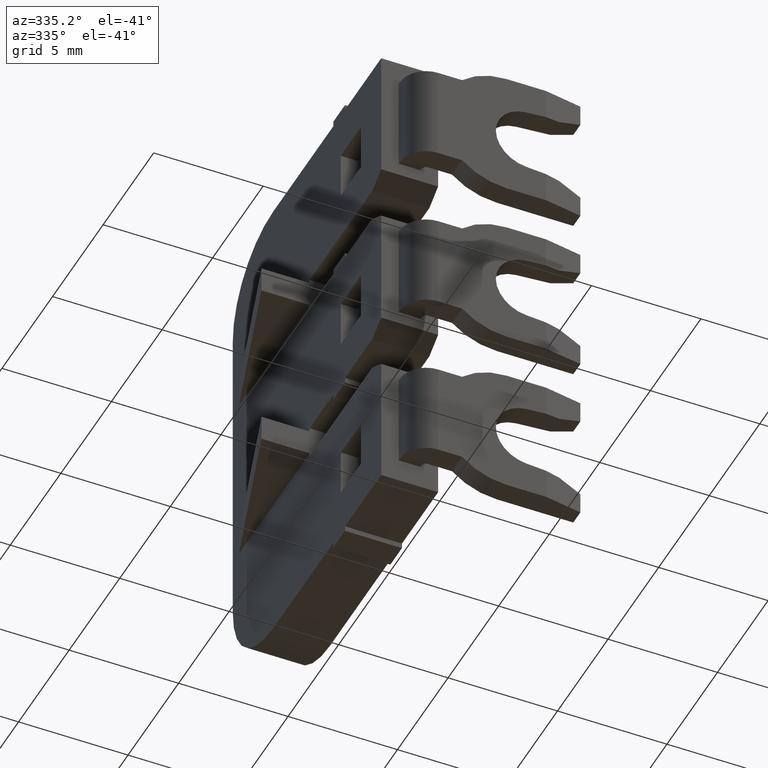
[diagram: clean part render]
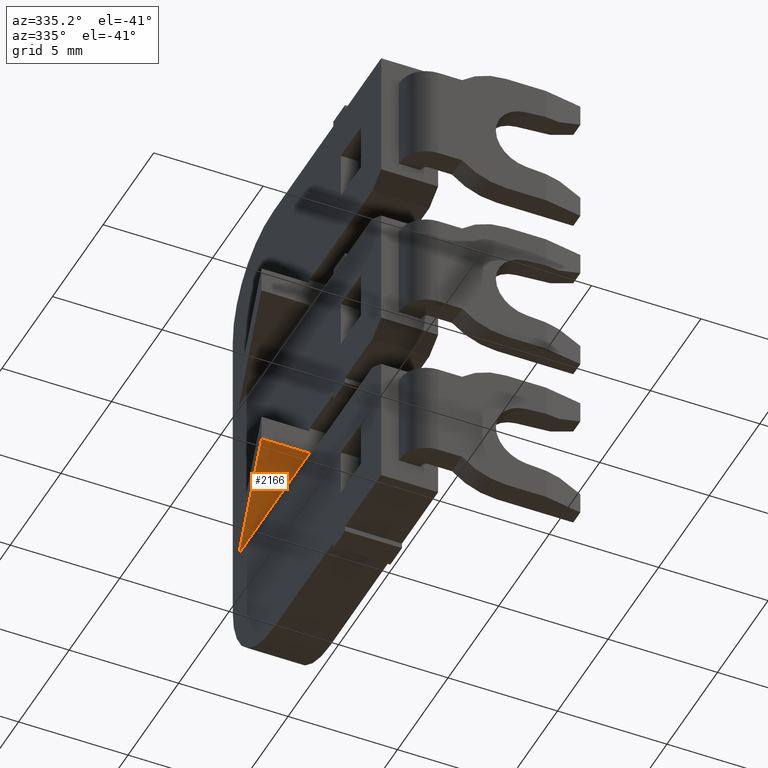
[diagram: same view with one face highlighted and labeled with its STEP entity id]
A machine part, auxiliary view. The second image highlights one B-rep face of the part: STEP entity #2166.
In plain terms, the highlighted planar face has unit normal (0, 0, 1).
Its self-contained STEP definition (entity closure, byte-faithful):
#246 = LINE ( 'NONE', #250, #1277 ) ;
#250 = CARTESIAN_POINT ( 'NONE',  ( 1490.045209356660100, 1087.334526901996000, -8.774999998093223400 ) ) ;
#271 = DIRECTION ( 'NONE',  ( -1.000000000000000000, -3.663735981263015800E-015, 3.003463711734375600E-015 ) ) ;
#285 = ORIENTED_EDGE ( 'NONE', *, *, #1981, .T. ) ;
#299 = ORIENTED_EDGE ( 'NONE', *, *, #1974, .T. ) ;
#328 = ORIENTED_EDGE ( 'NONE', *, *, #1970, .T. ) ;
#1277 = VECTOR ( 'NONE', #271, 1000.000000000000000 ) ;
#1280 = VECTOR ( 'NONE', #3640, 1000.000000000000000 ) ;
#1297 = VECTOR ( 'NONE', #3637, 1000.000000000000100 ) ;
#1474 = AXIS2_PLACEMENT_3D ( 'NONE', #4152, #4133, #4141 ) ;
#1970 = EDGE_CURVE ( 'NONE', #2966, #2874, #246, .T. ) ;
#1974 = EDGE_CURVE ( 'NONE', #2875, #2966, #3621, .T. ) ;
#1981 = EDGE_CURVE ( 'NONE', #2874, #2875, #3628, .T. ) ;
#2166 = ADVANCED_FACE ( 'NONE', ( #4147 ), #4170, .F. ) ;
#2874 = VERTEX_POINT ( 'NONE', #4312 ) ;
#2875 = VERTEX_POINT ( 'NONE', #4300 ) ;
#2966 = VERTEX_POINT ( 'NONE', #4405 ) ;
#3110 = EDGE_LOOP ( 'NONE', ( #285, #299, #328 ) ) ;
#3610 = CARTESIAN_POINT ( 'NONE',  ( 1490.442980530508300, 1087.963798818786500, -8.774999998093225200 ) ) ;
#3620 = CARTESIAN_POINT ( 'NONE',  ( 1492.445209356660100, 1087.334526901996000, -8.774999998093230500 ) ) ;
#3621 = LINE ( 'NONE', #3620, #1280 ) ;
#3628 = LINE ( 'NONE', #3610, #1297 ) ;
#3637 = DIRECTION ( 'NONE',  ( 0.2998265967403909700, 0.9539937169012566700, -1.005147193930668400E-015 ) ) ;
#3640 = DIRECTION ( 'NONE',  ( 3.538835890992685300E-015, -1.000000000000000000, 1.096746120592191800E-016 ) ) ;
#4133 = DIRECTION ( 'NONE',  ( 3.003463711734375200E-015, 1.096746120592299800E-016, 1.000000000000000000 ) ) ;
#4141 = DIRECTION ( 'NONE',  ( 1.000000000000000000, -3.062777461358170000E-016, -3.003463711734375200E-015 ) ) ;
#4147 = FACE_OUTER_BOUND ( 'NONE', #3110, .T. ) ;
#4152 = CARTESIAN_POINT ( 'NONE',  ( 1492.445209356660100, 1087.334526901996000, -8.774999998093230500 ) ) ;
#4170 = PLANE ( 'NONE',  #1474 ) ;
#4300 = CARTESIAN_POINT ( 'NONE',  ( 1492.445209356660100, 1094.334526901995800, -8.774999998093230500 ) ) ;
#4312 = CARTESIAN_POINT ( 'NONE',  ( 1490.245209356660100, 1087.334526901996000, -8.774999998093223400 ) ) ;
#4405 = CARTESIAN_POINT ( 'NONE',  ( 1492.445209356660100, 1087.334526901996000, -8.774999998093232300 ) ) ;